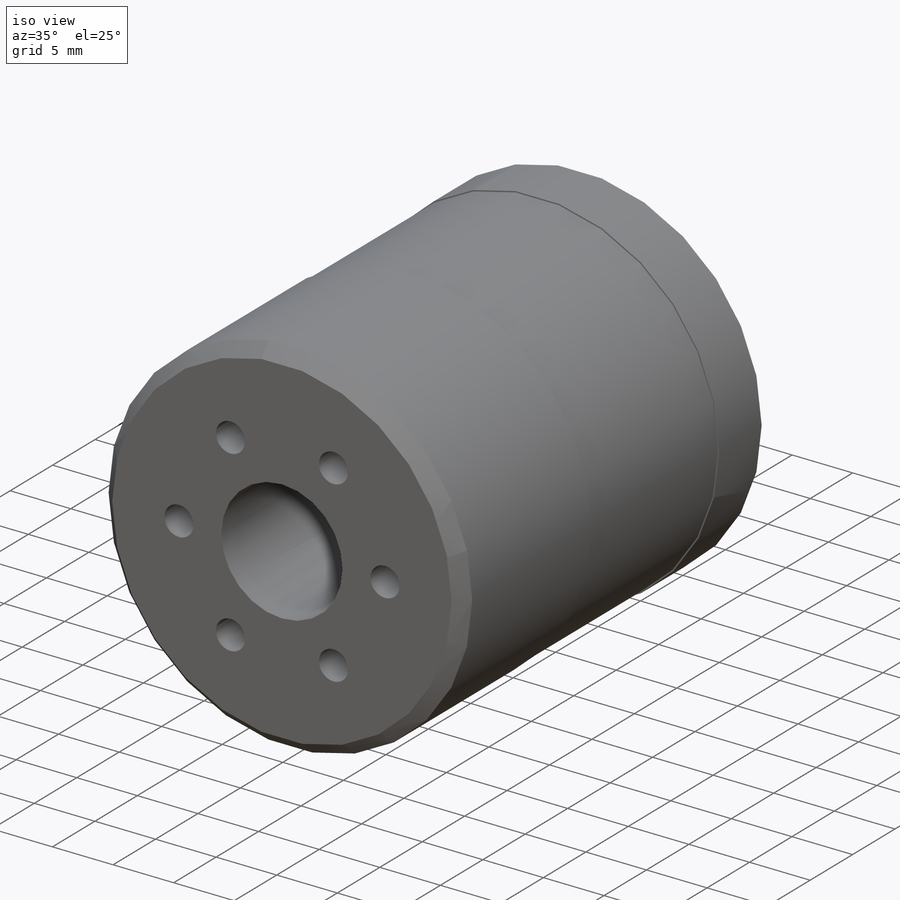
[diagram: iso view]
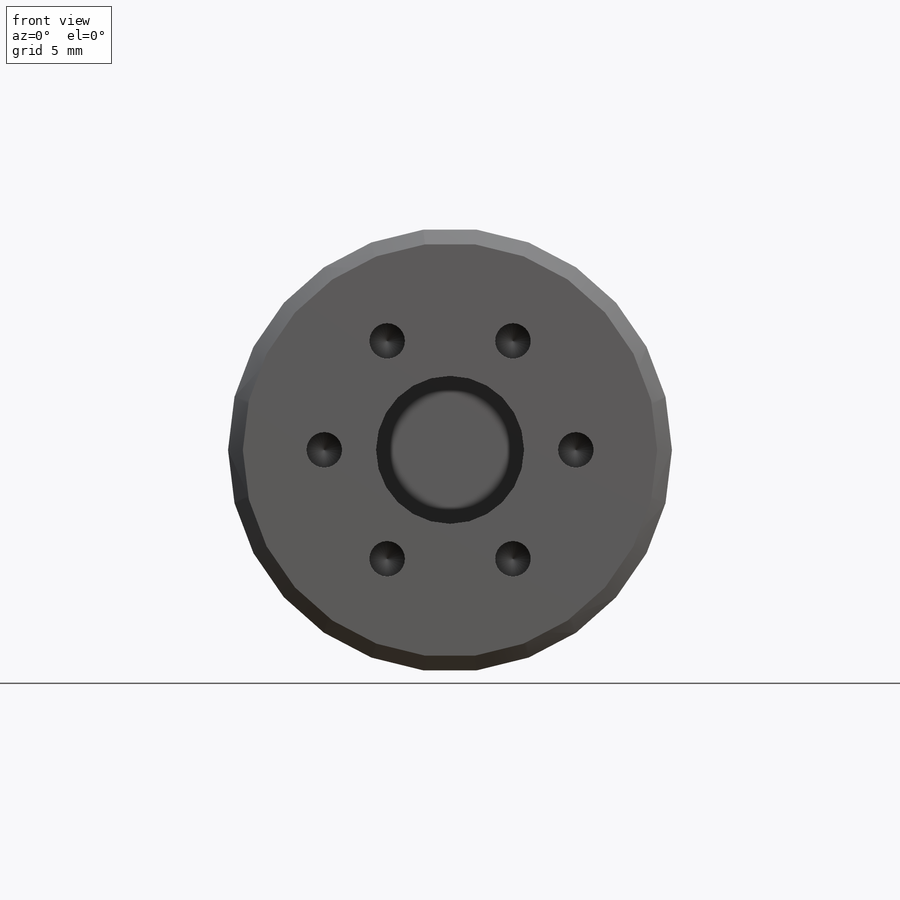
[diagram: front view]
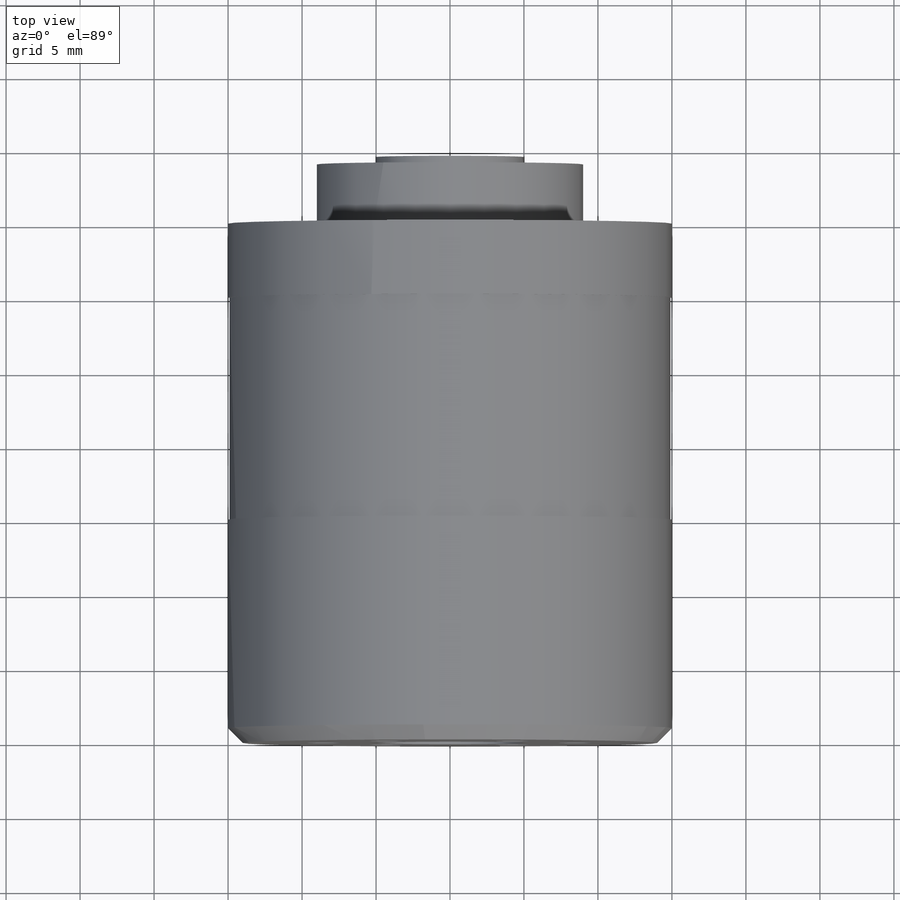
[diagram: top view]
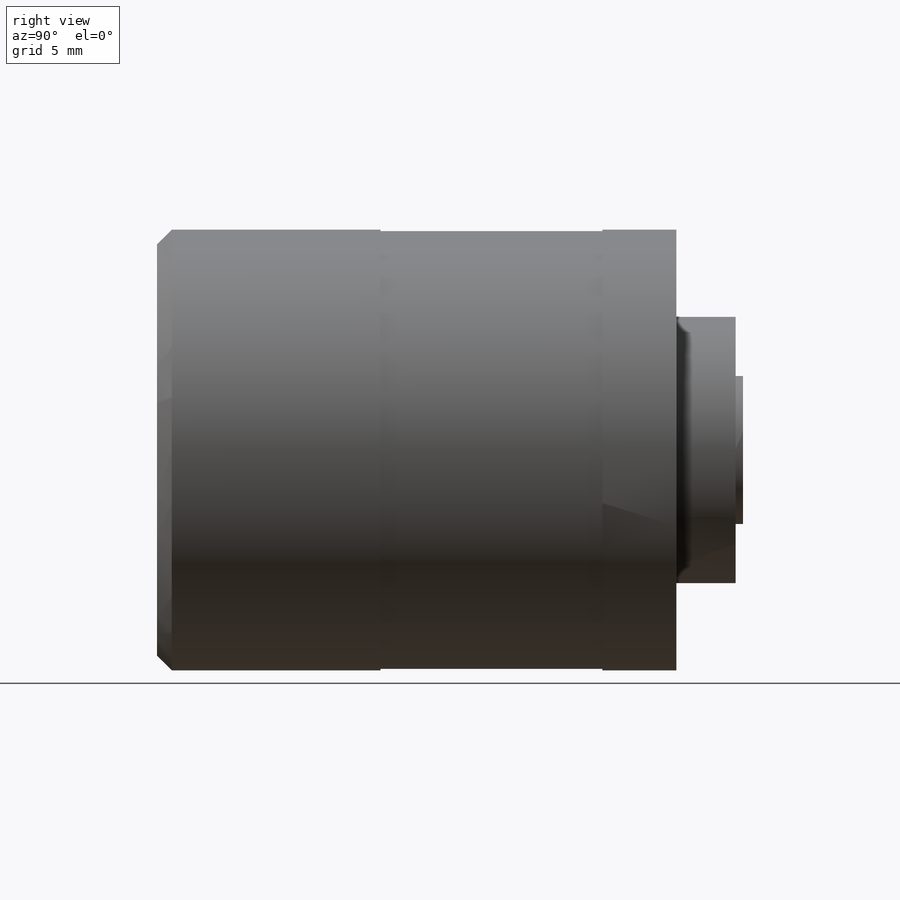
[diagram: right view]
SOLIDWORKS PART (.sldprt)
format: sldprt  version: not decoded by parser v0  size: 306,688 bytes
history: native  units: mm
features: sketch x11, extrude x4, thread x4, plane x3, cut_extrude x3, hole x2, material x1, chamfer x1 (+11 scaffold rows collapsed)
feature tree (40):
  scaffold x11  (default folders/planes/origin — collapsed)
  material  "Matériau <non spécifié>"
  plane  "Face"
  plane  "Dessus"
  plane  "Droite"
  sketch  "Esquisse1"  dims[D1=30.0mm]
  extrude  "Extrusion1"  Depth=35.1mm
  sketch  "Esquisse2"  dims[D1=18.0mm]
  extrude  "Extrusion2"  Depth=4mm
  sketch  "Esquisse3"  dims[D1=10.0mm]
  extrude  "Extrusion3"  Depth=0.5mm
  chamfer  "Chanfrein1"  Distance=1mm Angle=45deg
  sketch  "Esquisse7"  dims[D1=8.0mm]
  cut_extrude  "Enlèv. mat.-Extru.1"  [1 undecoded]
  sketch  "Esquisse8"  dims[c1.D1=~28.501818mm c1.D2=~29.001818mm c2.D1=0.1mm c2.D2=~0.499091mm]
  cut_extrude  "Enlèv. mat.-Extru.2"  Depth=20mm
  sketch  "Esquisse9"
  extrude  "Extrusion4"  Depth=5mm
  hole  "Trou taraudé M31"  Diameter=2.5mm Depth=4.5mm
  sketch  "Esquisse5"  dims[D1=26.0mm]
  sketch  "Esquisse4"  dims[hole-wizard template sketch: 50 standard entries collapsed; hole parameters above]
  thread  "Filetage de perçage1"  Diameter=3mm  [1 undecoded]
  thread  "Filetage de perçage2"  Diameter=3mm  [1 undecoded]
  thread  "Filetage de perçage3"  Diameter=3mm  [1 undecoded]
  thread  "Filetage de perçage4"  Diameter=3mm  [1 undecoded]
  sketch  "Esquisse10"  dims[D1=10.0mm]
  cut_extrude  "Enlèv. mat.-Extru.3"  Depth=15mm
  hole  "Dégagement M21"  Diameter=2.4mm Depth=3mm
  sketch  "Esquisse13"  dims[c1.D1=17.0mm c1.D2=17.0mm c2.D2=60.0deg c2.D3=17.0mm c3.D3=60.0deg]
  sketch  "Esquisse14"  dims[hole-wizard template sketch: 50 standard entries collapsed; hole parameters above]
decode coverage: 23 of 25 modeling features carry decoded parameters
note: ~ marks probable driven/reference dimensions
note: 5 parameter values undecoded
note: suppression state not decoded; provenance and decode notes live in map.json
